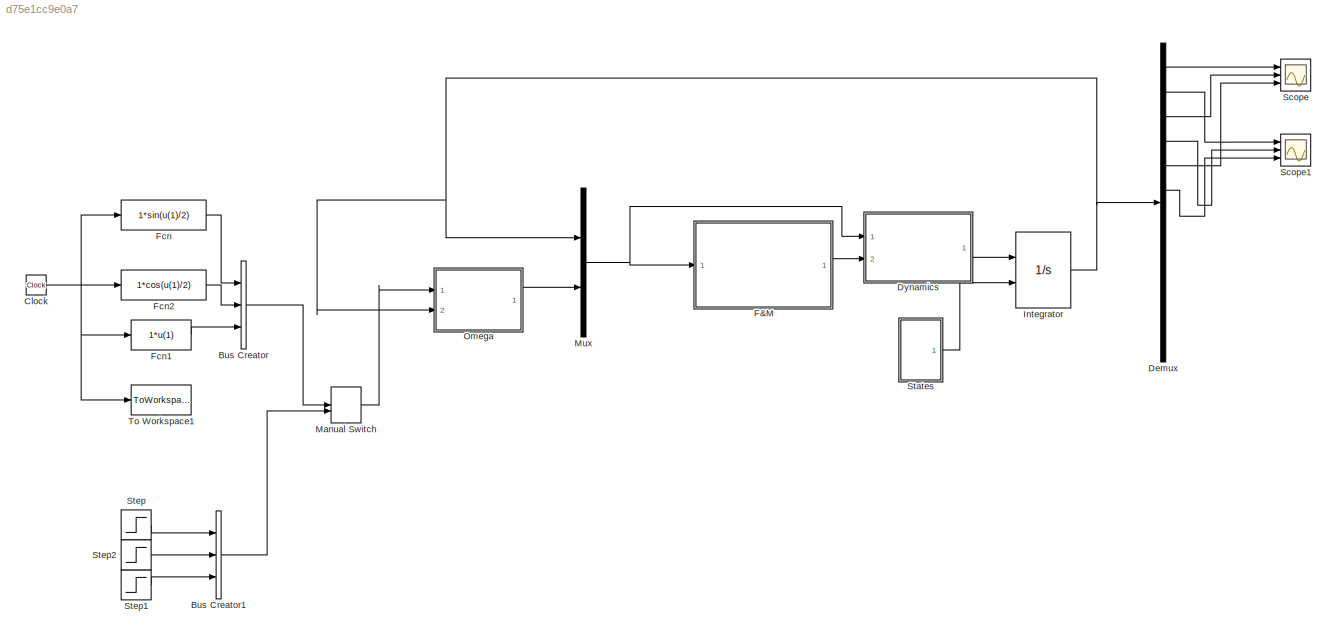
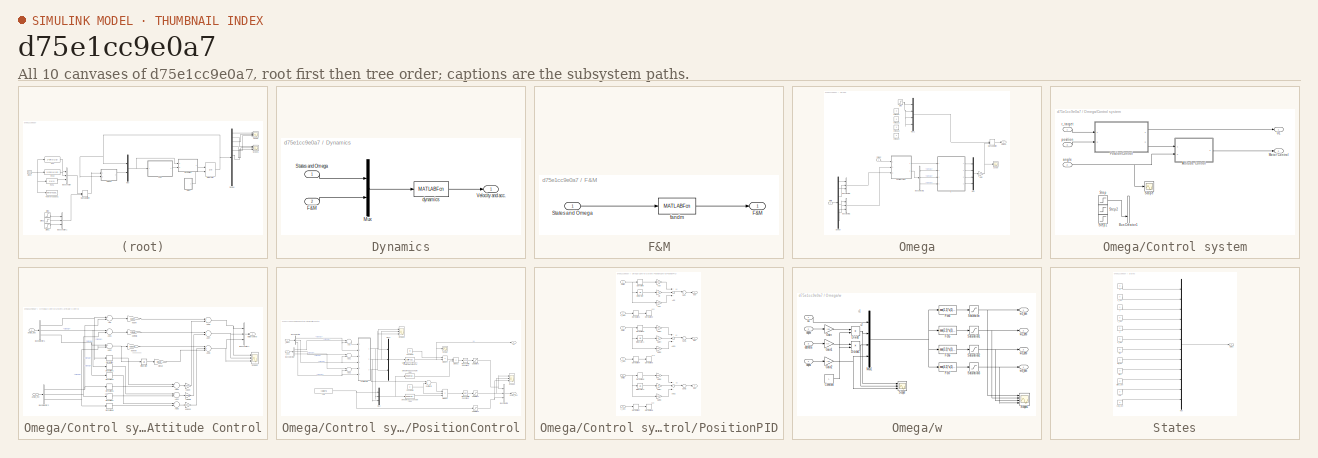
[diagram: thumbnail index - all 10 canvases of the model, root first then tree order]
MODEL slx_d75e1cc9e0a7
KIND model
CONFIG AbsTol = auto
CONFIG EnableMultiTasking = off
CONFIG FixedStep = 0.01
CONFIG InitFcn = glob
CONFIG MaxStep = auto
CONFIG MinStep = auto
CONFIG RelTol = 1e-3
CONFIG SampleTimeConstraint = Unconstrained
CONFIG Solver = FixedStepAuto
CONFIG SolverName = FixedStepAuto
CONFIG StartTime = 0.0
CONFIG StopTime = 10
BLOCK [BusCreator] Bus Creator
  DisplayOption = bar
  InheritFromInputs = on
  Inputs = 3
  Ports = [3, 1]
BLOCK [BusCreator] Bus Creator1
  DisplayOption = bar
  InheritFromInputs = on
  Inputs = 3
  Ports = [3, 1]
BLOCK [Clock] Clock
BLOCK [Demux] Demux
  DisplayOption = bar
  Outputs = 12
  Ports = [1, 12]
BLOCK [SubSystem] Dynamics
  Ports = [2, 1]
  RequestExecContextInheritance = off
  Variant = off
BLOCK [Inport] Dynamics/F&M
  IconDisplay = Port number
  Port = 2
BLOCK [Mux] Dynamics/Mux
  DisplayOption = bar
  Inputs = 2
  Ports = [2, 1]
BLOCK [Inport] Dynamics/States and Omega
  IconDisplay = Port number
BLOCK [Outport] Dynamics/Velocity and acc. 
  IconDisplay = Port number
BLOCK [MATLABFcn] Dynamics/dynamics
  MATLABFcn = dynamics
  OutputDimensions = 12
  Ports = [1, 1]
BLOCK [SubSystem] F&M
  Ports = [1, 1]
  RequestExecContextInheritance = off
  Variant = off
BLOCK [Outport] F&M/F&M
  IconDisplay = Port number
BLOCK [Inport] F&M/States and Omega
  IconDisplay = Port number
BLOCK [MATLABFcn] F&M/fandm
  MATLABFcn = motorFM
  OutputDimensions = 24
  Ports = [1, 1]
BLOCK [Fcn] Fcn
  Expr = 1*sin(u(1)/2)
BLOCK [Fcn] Fcn1
  Expr = 1*u(1)
BLOCK [Fcn] Fcn2
  Expr = 1*cos(u(1)/2)
BLOCK [Integrator] Integrator
  InitialConditionSource = external
  Ports = [2, 1]
BLOCK [ManualSwitch] Manual Switch
BLOCK [Mux] Mux
  DisplayOption = bar
  Inputs = 2
  Ports = [2, 1]
BLOCK [SubSystem] Omega
  Ports = [2, 1]
  RequestExecContextInheritance = off
  Variant = off
BLOCK [BusCreator] Omega/Bus Creator1
  DisplayOption = bar
  InheritFromInputs = on
  Inputs = 3
  Ports = [3, 1]
BLOCK [BusCreator] Omega/Bus Creator2
  DisplayOption = bar
  InheritFromInputs = on
  Inputs = 3
  Ports = [3, 1]
BLOCK [BusSelector] Omega/Bus Selector1
  OutputAsBus = off
  OutputSignals = signal1,signal2,signal3
  Ports = [1, 3]
BLOCK [SubSystem] Omega/Control system
  Ports = [3, 2]
  RequestExecContextInheritance = off
  Variant = off
BLOCK [SubSystem] Omega/Control system/Attitude Control
  Ports = [2, 1]
  RequestExecContextInheritance = off
  Variant = off
BLOCK [Sum] Omega/Control system/Attitude Control/Add
  InputSameDT = off
  Inputs = +-
  OutDataTypeStr = Inherit: Inherit via internal rule
  Ports = [2, 1]
  SaturateOnIntegerOverflow = off
BLOCK [Sum] Omega/Control system/Attitude Control/Add1
  InputSameDT = off
  Inputs = +-
  OutDataTypeStr = Inherit: Inherit via internal rule
  Ports = [2, 1]
  SaturateOnIntegerOverflow = off
BLOCK [Sum] Omega/Control system/Attitude Control/Add2
  InputSameDT = off
  Inputs = +-
  OutDataTypeStr = Inherit: Inherit via internal rule
  Ports = [2, 1]
  SaturateOnIntegerOverflow = off
BLOCK [Sum] Omega/Control system/Attitude Control/Add3
  InputSameDT = off
  Inputs = +-
  OutDataTypeStr = Inherit: Inherit via internal rule
  Ports = [2, 1]
  SaturateOnIntegerOverflow = off
BLOCK [Sum] Omega/Control system/Attitude Control/Add4
  InputSameDT = off
  Inputs = +-
  OutDataTypeStr = Inherit: Inherit via internal rule
  Ports = [2, 1]
  SaturateOnIntegerOverflow = off
BLOCK [Sum] Omega/Control system/Attitude Control/Add5
  InputSameDT = off
  Inputs = +-
  OutDataTypeStr = Inherit: Inherit via internal rule
  Ports = [2, 1]
  SaturateOnIntegerOverflow = off
BLOCK [Sum] Omega/Control system/Attitude Control/Add6
  InputSameDT = off
  OutDataTypeStr = Inherit: Inherit via internal rule
  Ports = [2, 1]
  SaturateOnIntegerOverflow = off
BLOCK [Sum] Omega/Control system/Attitude Control/Add7
  InputSameDT = off
  OutDataTypeStr = Inherit: Inherit via internal rule
  Ports = [2, 1]
  SaturateOnIntegerOverflow = off
BLOCK [Sum] Omega/Control system/Attitude Control/Add8
  InputSameDT = off
  Inputs = +++
  OutDataTypeStr = Inherit: Inherit via internal rule
  Ports = [3, 1]
  SaturateOnIntegerOverflow = off
BLOCK [BusCreator] Omega/Control system/Attitude Control/Bus Creator1
  DisplayOption = bar
  InheritFromInputs = on
  Inputs = 3
  Ports = [3, 1]
BLOCK [BusSelector] Omega/Control system/Attitude Control/Bus Selector1
  OutputAsBus = off
  OutputSignals = signal1,signal2,signal3
  Ports = [1, 3]
BLOCK [BusSelector] Omega/Control system/Attitude Control/Bus Selector2
  OutputAsBus = off
  OutputSignals = signal1,signal2,signal3
  Ports = [1, 3]
BLOCK [Derivative] Omega/Control system/Attitude Control/Derivative
  CoefficientInTFapproximation = 500
BLOCK [Derivative] Omega/Control system/Attitude Control/Derivative1
  CoefficientInTFapproximation = 500
BLOCK [Derivative] Omega/Control system/Attitude Control/Derivative2
  CoefficientInTFapproximation = 500
BLOCK [Derivative] Omega/Control system/Attitude Control/Derivative6
  CoefficientInTFapproximation = 500
BLOCK [Derivative] Omega/Control system/Attitude Control/Derivative7
  CoefficientInTFapproximation = 500
BLOCK [Derivative] Omega/Control system/Attitude Control/Derivative8
  CoefficientInTFapproximation = 500
BLOCK [Integrator] Omega/Control system/Attitude Control/Integrator
  Ports = [1, 1]
BLOCK [Scope] Omega/Control system/Attitude Control/Scope2
  NumInputPorts = 3
  Ports = [3]
  ScopeSpecificationString = Simulink.scopes.TimeScopeBlockCfg('CurrentConfiguration', extmgr.ConfigurationSet(extmgr.Configuration('Core','General UI',true),extmgr.Configuration('Core','Source UI',true),extmgr.Configuration('Sources','WiredSimulink',true,'DataLoggingVariableName','ScopeData3'),extmgr.Configuration('Visuals','Time Domain',true,'SerializedDisplays',{struct('MinYLimReal','-2343.79359','MaxYLimReal','2777.88882'...<+1397ch>
BLOCK [Inport] Omega/Control system/Attitude Control/angle_des
  IconDisplay = Port number
BLOCK [Inport] Omega/Control system/Attitude Control/angle_est
  IconDisplay = Port number
  Port = 2
BLOCK [Gain] Omega/Control system/Attitude Control/kdphi
  Gain = kdphi
  OutDataTypeStr = Inherit: Inherit via internal rule
  ParamDataTypeStr = Inherit: Inherit via internal rule
  SaturateOnIntegerOverflow = off
BLOCK [Gain] Omega/Control system/Attitude Control/kdpsai
  Gain = kdpsai
  OutDataTypeStr = Inherit: Inherit via internal rule
  ParamDataTypeStr = Inherit: Inherit via internal rule
  SaturateOnIntegerOverflow = off
BLOCK [Gain] Omega/Control system/Attitude Control/kdtheta
  Gain = kdtheta
  OutDataTypeStr = Inherit: Inherit via internal rule
  ParamDataTypeStr = Inherit: Inherit via internal rule
  SaturateOnIntegerOverflow = off
BLOCK [Gain] Omega/Control system/Attitude Control/kipsai
  Gain = kipsai
  OutDataTypeStr = Inherit: Inherit via internal rule
  ParamDataTypeStr = Inherit: Inherit via internal rule
  SaturateOnIntegerOverflow = off
BLOCK [Gain] Omega/Control system/Attitude Control/kpphi
  Gain = kpphi
  OutDataTypeStr = Inherit: Inherit via internal rule
  ParamDataTypeStr = Inherit: Inherit via internal rule
  SaturateOnIntegerOverflow = off
BLOCK [Gain] Omega/Control system/Attitude Control/kppsai
  Gain = kppsai
  OutDataTypeStr = Inherit: Inherit via internal rule
  ParamDataTypeStr = Inherit: Inherit via internal rule
  SaturateOnIntegerOverflow = off
BLOCK [Gain] Omega/Control system/Attitude Control/kptheta
  Gain = kptheta
  OutDataTypeStr = Inherit: Inherit via internal rule
  ParamDataTypeStr = Inherit: Inherit via internal rule
  SaturateOnIntegerOverflow = off
BLOCK [Outport] Omega/Control system/Attitude Control/motor control
  IconDisplay = Port number
BLOCK [BusCreator] Omega/Control system/Bus Creator1
  DisplayOption = bar
  InheritFromInputs = on
  Inputs = 3
  Ports = [3, 1]
BLOCK [Outport] Omega/Control system/Motor Control
  IconDisplay = Port number
  Port = 2
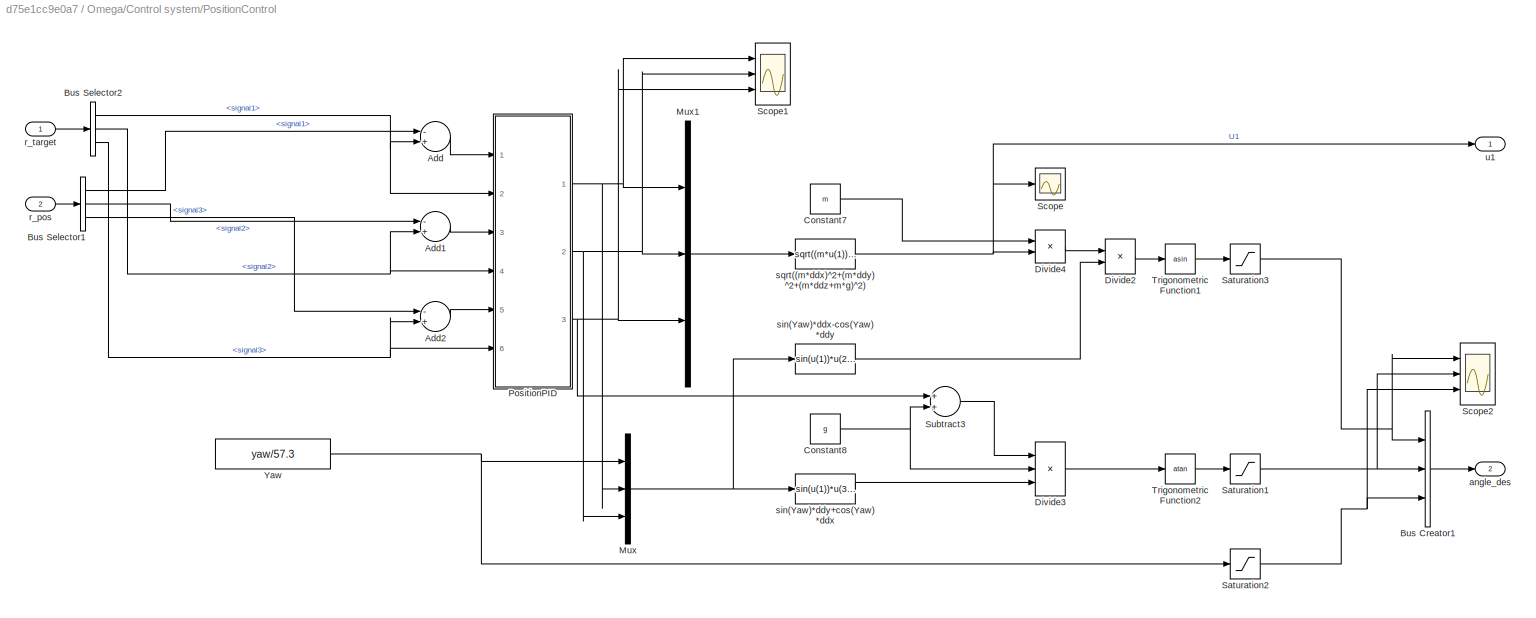
BLOCK [SubSystem] Omega/Control system/PositionControl
  Ports = [2, 2]
  RequestExecContextInheritance = off
  Variant = off
BLOCK [Sum] Omega/Control system/PositionControl/Add
  InputSameDT = off
  Inputs = -+
  OutDataTypeStr = Inherit: Inherit via internal rule
  Ports = [2, 1]
  SaturateOnIntegerOverflow = off
BLOCK [Sum] Omega/Control system/PositionControl/Add1
  InputSameDT = off
  Inputs = -+
  OutDataTypeStr = Inherit: Inherit via internal rule
  Ports = [2, 1]
  SaturateOnIntegerOverflow = off
BLOCK [Sum] Omega/Control system/PositionControl/Add2
  InputSameDT = off
  Inputs = -+
  OutDataTypeStr = Inherit: Inherit via internal rule
  Ports = [2, 1]
  SaturateOnIntegerOverflow = off
BLOCK [BusCreator] Omega/Control system/PositionControl/Bus Creator1
  DisplayOption = bar
  InheritFromInputs = on
  Inputs = 3
  Ports = [3, 1]
BLOCK [BusSelector] Omega/Control system/PositionControl/Bus Selector1
  OutputAsBus = off
  OutputSignals = signal1,signal2,signal3
  Ports = [1, 3]
BLOCK [BusSelector] Omega/Control system/PositionControl/Bus Selector2
  OutputAsBus = off
  OutputSignals = signal1,signal2,signal3
  Ports = [1, 3]
BLOCK [Constant] Omega/Control system/PositionControl/Constant7
  Value = m
BLOCK [Constant] Omega/Control system/PositionControl/Constant8
  Value = g
BLOCK [Product] Omega/Control system/PositionControl/Divide2
  InputSameDT = off
  Inputs = **
  OutDataTypeStr = Inherit: Inherit via internal rule
  Ports = [2, 1]
  RndMeth = Floor
  SaturateOnIntegerOverflow = off
BLOCK [Product] Omega/Control system/PositionControl/Divide3
  InputSameDT = off
  Inputs = /**
  OutDataTypeStr = Inherit: Inherit via internal rule
  Ports = [3, 1]
  RndMeth = Floor
  SaturateOnIntegerOverflow = off
BLOCK [Product] Omega/Control system/PositionControl/Divide4
  InputSameDT = off
  Inputs = */
  OutDataTypeStr = Inherit: Inherit via internal rule
  Ports = [2, 1]
  RndMeth = Floor
  SaturateOnIntegerOverflow = off
BLOCK [Mux] Omega/Control system/PositionControl/Mux
  DisplayOption = bar
  Inputs = 3
  Ports = [3, 1]
BLOCK [Mux] Omega/Control system/PositionControl/Mux1
  DisplayOption = bar
  Inputs = 3
  Ports = [3, 1]
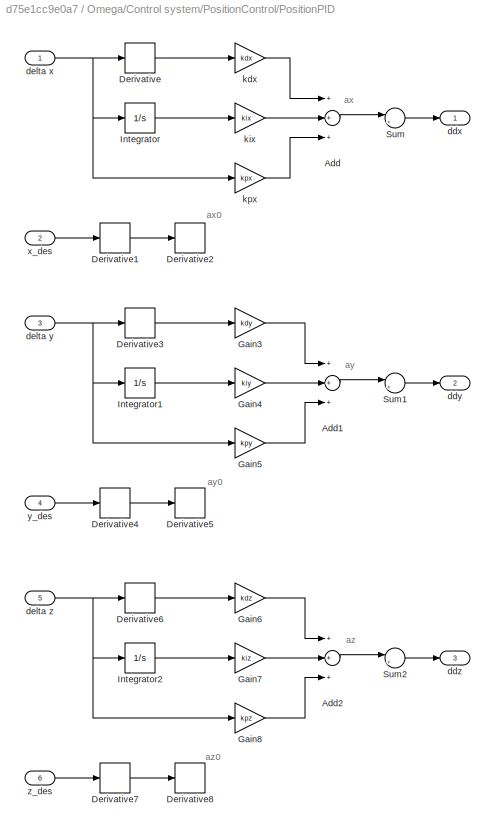
BLOCK [SubSystem] Omega/Control system/PositionControl/PositionPID
  Ports = [6, 3]
  RequestExecContextInheritance = off
  Variant = off
BLOCK [Sum] Omega/Control system/PositionControl/PositionPID/Add
  InputSameDT = off
  Inputs = +++
  OutDataTypeStr = Inherit: Inherit via internal rule
  Ports = [3, 1]
  SaturateOnIntegerOverflow = off
BLOCK [Sum] Omega/Control system/PositionControl/PositionPID/Add1
  InputSameDT = off
  Inputs = +++
  OutDataTypeStr = Inherit: Inherit via internal rule
  Ports = [3, 1]
  SaturateOnIntegerOverflow = off
BLOCK [Sum] Omega/Control system/PositionControl/PositionPID/Add2
  InputSameDT = off
  Inputs = +++
  OutDataTypeStr = Inherit: Inherit via internal rule
  Ports = [3, 1]
  SaturateOnIntegerOverflow = off
BLOCK [Derivative] Omega/Control system/PositionControl/PositionPID/Derivative
  CoefficientInTFapproximation = 500
BLOCK [Derivative] Omega/Control system/PositionControl/PositionPID/Derivative1
  CoefficientInTFapproximation = 500
BLOCK [Derivative] Omega/Control system/PositionControl/PositionPID/Derivative2
  CoefficientInTFapproximation = 500
BLOCK [Derivative] Omega/Control system/PositionControl/PositionPID/Derivative3
  CoefficientInTFapproximation = 500
BLOCK [Derivative] Omega/Control system/PositionControl/PositionPID/Derivative4
  CoefficientInTFapproximation = 500
BLOCK [Derivative] Omega/Control system/PositionControl/PositionPID/Derivative5
  CoefficientInTFapproximation = 500
BLOCK [Derivative] Omega/Control system/PositionControl/PositionPID/Derivative6
BLOCK [Derivative] Omega/Control system/PositionControl/PositionPID/Derivative7
  CoefficientInTFapproximation = 500
BLOCK [Derivative] Omega/Control system/PositionControl/PositionPID/Derivative8
  CoefficientInTFapproximation = 500
BLOCK [Gain] Omega/Control system/PositionControl/PositionPID/Gain3
  Gain = kdy
  OutDataTypeStr = Inherit: Inherit via internal rule
  ParamDataTypeStr = Inherit: Inherit via internal rule
  SaturateOnIntegerOverflow = off
BLOCK [Gain] Omega/Control system/PositionControl/PositionPID/Gain4
  Gain = kiy
  OutDataTypeStr = Inherit: Inherit via internal rule
  ParamDataTypeStr = Inherit: Inherit via internal rule
  SaturateOnIntegerOverflow = off
BLOCK [Gain] Omega/Control system/PositionControl/PositionPID/Gain5
  Gain = kpy
  OutDataTypeStr = Inherit: Inherit via internal rule
  ParamDataTypeStr = Inherit: Inherit via internal rule
  SaturateOnIntegerOverflow = off
BLOCK [Gain] Omega/Control system/PositionControl/PositionPID/Gain6
  Gain = kdz
  OutDataTypeStr = Inherit: Inherit via internal rule
  ParamDataTypeStr = Inherit: Inherit via internal rule
  SaturateOnIntegerOverflow = off
BLOCK [Gain] Omega/Control system/PositionControl/PositionPID/Gain7
  Gain = kiz
  OutDataTypeStr = Inherit: Inherit via internal rule
  ParamDataTypeStr = Inherit: Inherit via internal rule
  SaturateOnIntegerOverflow = off
BLOCK [Gain] Omega/Control system/PositionControl/PositionPID/Gain8
  Gain = kpz
  OutDataTypeStr = Inherit: Inherit via internal rule
  ParamDataTypeStr = Inherit: Inherit via internal rule
  SaturateOnIntegerOverflow = off
BLOCK [Integrator] Omega/Control system/PositionControl/PositionPID/Integrator
  Ports = [1, 1]
BLOCK [Integrator] Omega/Control system/PositionControl/PositionPID/Integrator1
  Ports = [1, 1]
BLOCK [Integrator] Omega/Control system/PositionControl/PositionPID/Integrator2
  Ports = [1, 1]
BLOCK [Sum] Omega/Control system/PositionControl/PositionPID/Sum
  IconShape = round
  InputSameDT = off
  Inputs = |++
  OutDataTypeStr = Inherit: Inherit via internal rule
  Ports = [2, 1]
  SaturateOnIntegerOverflow = off
BLOCK [Sum] Omega/Control system/PositionControl/PositionPID/Sum1
  IconShape = round
  InputSameDT = off
  Inputs = |++
  OutDataTypeStr = Inherit: Inherit via internal rule
  Ports = [2, 1]
  SaturateOnIntegerOverflow = off
BLOCK [Sum] Omega/Control system/PositionControl/PositionPID/Sum2
  IconShape = round
  InputSameDT = off
  Inputs = |++
  OutDataTypeStr = Inherit: Inherit via internal rule
  Ports = [2, 1]
  SaturateOnIntegerOverflow = off
BLOCK [Outport] Omega/Control system/PositionControl/PositionPID/ddx
  IconDisplay = Port number
BLOCK [Outport] Omega/Control system/PositionControl/PositionPID/ddy
  IconDisplay = Port number
  Port = 2
BLOCK [Outport] Omega/Control system/PositionControl/PositionPID/ddz
  IconDisplay = Port number
  Port = 3
BLOCK [Inport] Omega/Control system/PositionControl/PositionPID/delta x
  IconDisplay = Port number
BLOCK [Inport] Omega/Control system/PositionControl/PositionPID/delta y
  IconDisplay = Port number
  Port = 3
BLOCK [Inport] Omega/Control system/PositionControl/PositionPID/delta z
  IconDisplay = Port number
  Port = 5
BLOCK [Gain] Omega/Control system/PositionControl/PositionPID/kdx
  Gain = kdx
  OutDataTypeStr = Inherit: Inherit via internal rule
  ParamDataTypeStr = Inherit: Inherit via internal rule
  SaturateOnIntegerOverflow = off
BLOCK [Gain] Omega/Control system/PositionControl/PositionPID/kix
  Gain = kix
  OutDataTypeStr = Inherit: Inherit via internal rule
  ParamDataTypeStr = Inherit: Inherit via internal rule
  SaturateOnIntegerOverflow = off
BLOCK [Gain] Omega/Control system/PositionControl/PositionPID/kpx
  Gain = kpx
  OutDataTypeStr = Inherit: Inherit via internal rule
  ParamDataTypeStr = Inherit: Inherit via internal rule
  SaturateOnIntegerOverflow = off
BLOCK [Inport] Omega/Control system/PositionControl/PositionPID/x_des
  IconDisplay = Port number
  Port = 2
BLOCK [Inport] Omega/Control system/PositionControl/PositionPID/y_des
  IconDisplay = Port number
  Port = 4
BLOCK [Inport] Omega/Control system/PositionControl/PositionPID/z_des
  IconDisplay = Port number
  Port = 6
BLOCK [Saturate] Omega/Control system/PositionControl/Saturation1
  InputPortMap = u0
  LowerLimit = -90/57.3
  Ports = [1, 1]
  UpperLimit = 90/57.3
BLOCK [Saturate] Omega/Control system/PositionControl/Saturation2
  InputPortMap = u0
  LowerLimit = -90/57.3
  Ports = [1, 1]
  UpperLimit = 90/57.3
BLOCK [Saturate] Omega/Control system/PositionControl/Saturation3
  InputPortMap = u0
  LowerLimit = -90/57.3
  Ports = [1, 1]
  UpperLimit = 90/57.3
BLOCK [Scope] Omega/Control system/PositionControl/Scope
  NumInputPorts = 1
  Ports = [1]
  ScopeSpecificationString = Simulink.scopes.TimeScopeBlockCfg('CurrentConfiguration', extmgr.ConfigurationSet(extmgr.Configuration('Core','General UI',true,'FigureColor',[0.941176470588235 0.941176470588235 0.941176470588235]),extmgr.Configuration('Core','Source UI',true),extmgr.Configuration('Sources','WiredSimulink',true,'DataLoggingVariableName','ScopeData5'),extmgr.Configuration('Visuals','Time Domain',true,'SerializedDi...<+1560ch>
BLOCK [Scope] Omega/Control system/PositionControl/Scope1
  NumInputPorts = 3
  Ports = [3]
  ScopeSpecificationString = Simulink.scopes.TimeScopeBlockCfg('CurrentConfiguration', extmgr.ConfigurationSet(extmgr.Configuration('Core','General UI',true),extmgr.Configuration('Core','Source UI',true),extmgr.Configuration('Sources','WiredSimulink',true,'DataLoggingVariableName','ScopeData1'),extmgr.Configuration('Visuals','Time Domain',true,'SerializedDisplays',{struct('MinYLimReal','-10.6688','MaxYLimReal','67.48411','YLa...<+1406ch>
BLOCK [Scope] Omega/Control system/PositionControl/Scope2
  NumInputPorts = 3
  Ports = [3]
  ScopeSpecificationString = Simulink.scopes.TimeScopeBlockCfg('CurrentConfiguration', extmgr.ConfigurationSet(extmgr.Configuration('Core','General UI',true),extmgr.Configuration('Core','Source UI',true),extmgr.Configuration('Sources','WiredSimulink',true,'DataLoggingVariableName','ScopeData2'),extmgr.Configuration('Visuals','Time Domain',true,'SerializedDisplays',{struct('MinYLimReal','-0.56618','MaxYLimReal','0.38029','YLab...<+1398ch>
BLOCK [Sum] Omega/Control system/PositionControl/Subtract3
  InputSameDT = off
  OutDataTypeStr = Inherit: Inherit via internal rule
  Ports = [2, 1]
  SaturateOnIntegerOverflow = off
BLOCK [Trigonometry] Omega/Control system/PositionControl/Trigonometric Function1
  Operator = asin
  Ports = [1, 1]
BLOCK [Trigonometry] Omega/Control system/PositionControl/Trigonometric Function2
  Operator = atan
  Ports = [1, 1]
BLOCK [Constant] Omega/Control system/PositionControl/Yaw
  Value = yaw/57.3
BLOCK [Outport] Omega/Control system/PositionControl/angle_des
  IconDisplay = Port number
  Port = 2
BLOCK [Inport] Omega/Control system/PositionControl/r_pos
  IconDisplay = Port number
  Port = 2
BLOCK [Inport] Omega/Control system/PositionControl/r_target
  IconDisplay = Port number
BLOCK [Fcn] Omega/Control system/PositionControl/sin(Yaw)*ddx-cos(Yaw)*ddy
  Expr = sin(u(1))*u(2)-cos(u(1))*u(3)
BLOCK [Fcn] Omega/Control system/PositionControl/sin(Yaw)*ddy+cos(Yaw)*ddx
  Expr = sin(u(1))*u(3)+cos(u(1))*u(2)
BLOCK [Fcn] Omega/Control system/PositionControl/sqrt((m*ddx)^2+(m*ddy)^2+(m*ddz+m*g)^2)
  Expr = sqrt((m*u(1))^2+(m*u(2))^2+(m*u(3)+m*g)^2)
BLOCK [Outport] Omega/Control system/PositionControl/u1
  IconDisplay = Port number
BLOCK [Scope] Omega/Control system/Scope
  NumInputPorts = 1
  Ports = [1]
  ScopeSpecificationString = Simulink.scopes.TimeScopeBlockCfg('CurrentConfiguration', extmgr.ConfigurationSet(extmgr.Configuration('Core','General UI',true),extmgr.Configuration('Core','Source UI',true),extmgr.Configuration('Sources','WiredSimulink',true,'DataLoggingVariableName','ScopeData4'),extmgr.Configuration('Visuals','Time Domain',true,'SerializedDisplays',{struct('MinYLimReal','-2.07466','MaxYLimReal','0.70578','YLab...<+1438ch>
BLOCK [Step] Omega/Control system/Step
  After = pi/6
  SampleTime = 0
  Time = 0
BLOCK [Step] Omega/Control system/Step1
  After = zf
  SampleTime = 0
  Time = 0
BLOCK [Step] Omega/Control system/Step2
  After = yf
  SampleTime = 0
  Time = 0
BLOCK [Outport] Omega/Control system/U1
  IconDisplay = Port number
BLOCK [Inport] Omega/Control system/angle
  IconDisplay = Port number
  Port = 2
BLOCK [Inport] Omega/Control system/position
  IconDisplay = Port number
  Port = 3
BLOCK [Inport] Omega/Control system/r_target
  IconDisplay = Port number
BLOCK [Demux] Omega/Demux
  DisplayOption = bar
  Outputs = 12
  Ports = [1, 12]
BLOCK [Gain] Omega/Gain
  Gain = 1e-3
  OutDataTypeStr = Inherit: Inherit via internal rule
  ParamDataTypeStr = Inherit: Inherit via internal rule
  SaturateOnIntegerOverflow = off
BLOCK [ManualSwitch] Omega/Manual Switch
  CurrentSetting = 0
BLOCK [Mux] Omega/Mux
  DisplayOption = bar
  Ports = [4, 1]
BLOCK [Mux] Omega/Mux1
  DisplayOption = bar
  Ports = [4, 1]
BLOCK [Outport] Omega/Omega 
  IconDisplay = Port number
BLOCK [Scope] Omega/Scope
  NumInputPorts = 1
  Ports = [1]
  ScopeSpecificationString = Simulink.scopes.TimeScopeBlockCfg('CurrentConfiguration', extmgr.ConfigurationSet(extmgr.Configuration('Core','General UI',true),extmgr.Configuration('Core','Source UI',true),extmgr.Configuration('Sources','WiredSimulink',true,'DataLoggingVariableName','ScopeData5'),extmgr.Configuration('Visuals','Time Domain',true,'SerializedDisplays',{struct('MinYLimReal','-111.03305','MaxYLimReal','999.29745','...<+1433ch>
BLOCK [Step] Omega/Step
  SampleTime = 0
  Time = 0
BLOCK [Constant] Omega/omega1
  Value = 0
BLOCK [Constant] Omega/omega2
  Value = 0
BLOCK [Constant] Omega/omega3
  Value = 0
BLOCK [Constant] Omega/omega4
  Value = 0
BLOCK [Inport] Omega/r_target
  IconDisplay = Port number
BLOCK [Inport] Omega/state
  IconDisplay = Port number
  Port = 2
BLOCK [SubSystem] Omega/w
  Ports = [4, 4]
  RequestExecContextInheritance = off
  Variant = off
BLOCK [Constant] Omega/w/Constant
  Value = L
BLOCK [Product] Omega/w/Divide
  InputSameDT = off
  Inputs = */
  OutDataTypeStr = Inherit: Inherit via internal rule
  Ports = [2, 1]
  RndMeth = Floor
  SaturateOnIntegerOverflow = off
BLOCK [Product] Omega/w/Divide1
  InputSameDT = off
  Inputs = */
  OutDataTypeStr = Inherit: Inherit via internal rule
  Ports = [2, 1]
  RndMeth = Floor
  SaturateOnIntegerOverflow = off
BLOCK [Fcn] Omega/w/Fcn4
  Expr = aaa(1,1)*u(1)+aaa(1,2)*u(2)+aaa(1,3)*u(3)+aaa(1,4)*u(4)
BLOCK [Fcn] Omega/w/Fcn5
  Expr = aaa(2,1)*u(1)+aaa(2,2)*u(2)+aaa(2,3)*u(3)+aaa(2,4)*u(4)
BLOCK [Fcn] Omega/w/Fcn6
  Expr = aaa(3,1)*u(1)+aaa(3,2)*u(2)+aaa(3,3)*u(3)+aaa(3,4)*u(4)
BLOCK [Fcn] Omega/w/Fcn7
  Expr = aaa(4,1)*u(1)+aaa(4,2)*u(2)+aaa(4,3)*u(3)+aaa(4,4)*u(4)
BLOCK [Gain] Omega/w/Gain
  Gain = Ixx
  OutDataTypeStr = Inherit: Inherit via internal rule
  ParamDataTypeStr = Inherit: Inherit via internal rule
  SaturateOnIntegerOverflow = off
BLOCK [Gain] Omega/w/Gain1
  Gain = Iyy
  OutDataTypeStr = Inherit: Inherit via internal rule
  ParamDataTypeStr = Inherit: Inherit via internal rule
  SaturateOnIntegerOverflow = off
BLOCK [Gain] Omega/w/Gain2
  Gain = Izz
  OutDataTypeStr = Inherit: Inherit via internal rule
  ParamDataTypeStr = Inherit: Inherit via internal rule
  SaturateOnIntegerOverflow = off
BLOCK [Mux] Omega/w/Mux1
  DisplayOption = bar
  Ports = [4, 1]
BLOCK [Saturate] Omega/w/Saturation
  InputPortMap = u0
  LowerLimit = 0
  Ports = [1, 1]
  UpperLimit = (9000*2*pi/60)^2
BLOCK [Saturate] Omega/w/Saturation1
  InputPortMap = u0
  LowerLimit = 0
  Ports = [1, 1]
  UpperLimit = (9000*2*pi/60)^2
BLOCK [Saturate] Omega/w/Saturation2
  InputPortMap = u0
  LowerLimit = 0
  Ports = [1, 1]
  UpperLimit = (9000*2*pi/60)^2
BLOCK [Saturate] Omega/w/Saturation3
  InputPortMap = u0
  LowerLimit = 0
  Ports = [1, 1]
  UpperLimit = (9000*2*pi/60)^2
BLOCK [Scope] Omega/w/Scope
  NumInputPorts = 3
  Ports = [3]
  ScopeSpecificationString = Simulink.scopes.TimeScopeBlockCfg('CurrentConfiguration', extmgr.ConfigurationSet(extmgr.Configuration('Core','General UI',true),extmgr.Configuration('Core','Source UI',true),extmgr.Configuration('Sources','WiredSimulink',true,'DataLoggingVariableName','ScopeData6'),extmgr.Configuration('Visuals','Time Domain',true,'SerializedDisplays',{struct('MinYLimReal','-62.91873','MaxYLimReal','74.57195','YL...<+1387ch>
BLOCK [Scope] Omega/w/Scope1
  NumInputPorts = 4
  Ports = [4]
  ScopeSpecificationString = Simulink.scopes.TimeScopeBlockCfg('CurrentConfiguration', extmgr.ConfigurationSet(extmgr.Configuration('Core','General UI',true),extmgr.Configuration('Core','Source UI',true),extmgr.Configuration('Sources','WiredSimulink',true,'DataLoggingVariableName','ScopeData3'),extmgr.Configuration('Visuals','Time Domain',true,'SerializedDisplays',{struct('MinYLimReal','85086.36854','MaxYLimReal','977506.3991...<+1515ch>
BLOCK [Inport] Omega/w/ddphi
  IconDisplay = Port number
  Port = 2
BLOCK [Inport] Omega/w/ddpsi
  IconDisplay = Port number
  Port = 4
BLOCK [Inport] Omega/w/ddtheta
  IconDisplay = Port number
  Port = 3
BLOCK [Inport] Omega/w/u1
  IconDisplay = Port number
BLOCK [Outport] Omega/w/w1_des
  IconDisplay = Port number
BLOCK [Outport] Omega/w/w2_des
  IconDisplay = Port number
  Port = 2
BLOCK [Outport] Omega/w/w3_des
  IconDisplay = Port number
  Port = 3
BLOCK [Outport] Omega/w/w4_des
  IconDisplay = Port number
  Port = 4
BLOCK [Scope] Scope
  NumInputPorts = 3
  Ports = [3]
  ScopeSpecificationString = Simulink.scopes.TimeScopeBlockCfg('CurrentConfiguration', extmgr.ConfigurationSet(extmgr.Configuration('Core','General UI',true),extmgr.Configuration('Core','Source UI',true),extmgr.Configuration('Sources','WiredSimulink',true,'DataLoggingVariableName','ScopeData7'),extmgr.Configuration('Visuals','Time Domain',true,'SerializedDisplays',{struct('MinYLimReal','-2.7328','MaxYLimReal','10.84685','YLab...<+1459ch>
BLOCK [Scope] Scope1
  NumInputPorts = 3
  Ports = [3]
  ScopeSpecificationString = Simulink.scopes.TimeScopeBlockCfg('CurrentConfiguration', extmgr.ConfigurationSet(extmgr.Configuration('Core','General UI',true),extmgr.Configuration('Core','Source UI',true),extmgr.Configuration('Sources','WiredSimulink',true,'DataLoggingVariableName','ScopeData8'),extmgr.Configuration('Visuals','Time Domain',true),extmgr.Configuration('Tools','Plot Navigation',true),extmgr.Configuration('Tools',...<+40ch>
BLOCK [SubSystem] States
  Ports = [0, 1]
  RequestExecContextInheritance = off
  Variant = off
BLOCK [Mux] States/Mux
  DisplayOption = bar
  Inputs = 12
  Ports = [12, 1]
BLOCK [Outport] States/States 
  IconDisplay = Port number
BLOCK [Constant] States/pitch
  Value = 0
BLOCK [Constant] States/pitch_dot
  Value = 0
BLOCK [Constant] States/roll
  Value = 0
BLOCK [Constant] States/roll_dot
  Value = 0
BLOCK [Constant] States/x
  Value = 0
BLOCK [Constant] States/x_dot
  Value = 0
BLOCK [Constant] States/y
  Value = 0
BLOCK [Constant] States/y_dot
  Value = 0
BLOCK [Constant] States/yaw
  Value = 0
BLOCK [Constant] States/yaw_dot
  Value = 0
BLOCK [Constant] States/z
  Value = 0
BLOCK [Constant] States/z_dot
  Value = 0
BLOCK [Step] Step
  After = xf
  SampleTime = 0
  Time = 0
BLOCK [Step] Step1
  After = zf
  SampleTime = 0
  Time = 0
BLOCK [Step] Step2
  After = yf
  SampleTime = 0
  Time = 0
BLOCK [ToWorkspace] To Workspace1
  FixptAsFi = on
  MaxDataPoints = inf
  Ports = [1]
  SampleTime = -1
  Save2DSignal = 2-D array (concatenate along first dimension)
  VariableName = t
ANNOTATION Omega/Control system/Attitude Control: 500
ANNOTATION Omega/Control system/Attitude Control: 临时加的，不太好用
ANNOTATION Omega/Control system/PositionControl/PositionPID: ax
ANNOTATION Omega/Control system/PositionControl/PositionPID: ax0
ANNOTATION Omega/Control system/PositionControl/PositionPID: ay
ANNOTATION Omega/Control system/PositionControl/PositionPID: ay0
ANNOTATION Omega/Control system/PositionControl/PositionPID: az
ANNOTATION Omega/Control system/PositionControl/PositionPID: az0
ANNOTATION Omega/w: u1
ANNOTATION Omega/w: u2
LINE Bus Creator1:1 -> Manual Switch:2
LINE Bus Creator:1 -> Manual Switch:1
NET Clock:1 -> Fcn1:1, Fcn2:1, Fcn:1, To Workspace1:1
LINE Demux:1 -> Scope:1
LINE Demux:2 -> Scope1:1
LINE Demux:3 -> Scope:2
LINE Demux:4 -> Scope1:2
LINE Demux:5 -> Scope:3
LINE Demux:6 -> Scope1:3
LINE Dynamics/F&M:1 -> Dynamics/Mux:2
LINE Dynamics/Mux:1 -> Dynamics/dynamics:1
LINE Dynamics/States and Omega:1 -> Dynamics/Mux:1
LINE Dynamics/dynamics:1 -> Dynamics/Velocity and acc. :1
LINE Dynamics:1 -> Integrator:1
LINE F&M/States and Omega:1 -> F&M/fandm:1
LINE F&M/fandm:1 -> F&M/F&M:1
LINE F&M:1 -> Dynamics:2
LINE Fcn1:1 -> Bus Creator:3
LINE Fcn2:1 -> Bus Creator:2
LINE Fcn:1 -> Bus Creator:1
NET Integrator:1 -> Demux:1, Mux:1, Omega:2
LINE Manual Switch:1 -> Omega:1
NET Mux:1 -> Dynamics:1, F&M:1
LINE Omega/Bus Creator1:1 -> Omega/Control system:2
LINE Omega/Bus Creator2:1 -> Omega/Control system:3
LINE Omega/Bus Selector1:1 -> Omega/w:2
LINE Omega/Bus Selector1:2 -> Omega/w:3
LINE Omega/Bus Selector1:3 -> Omega/w:4
LINE Omega/Control system/Attitude Control/Add1:1 -> Omega/Control system/Attitude Control/kptheta:1
NET Omega/Control system/Attitude Control/Add2:1 -> Omega/Control system/Attitude Control/Integrator:1, Omega/Control system/Attitude Control/kppsai:1
LINE Omega/Control system/Attitude Control/Add3:1 -> Omega/Control system/Attitude Control/kdphi:1
LINE Omega/Control system/Attitude Control/Add4:1 -> Omega/Control system/Attitude Control/kdtheta:1
LINE Omega/Control system/Attitude Control/Add5:1 -> Omega/Control system/Attitude Control/kdpsai:1
NET Omega/Control system/Attitude Control/Add6:1 -> Omega/Control system/Attitude Control/Bus Creator1:1, Omega/Control system/Attitude Control/Scope2:1
NET Omega/Control system/Attitude Control/Add7:1 -> Omega/Control system/Attitude Control/Bus Creator1:2, Omega/Control system/Attitude Control/Scope2:2
NET Omega/Control system/Attitude Control/Add8:1 -> Omega/Control system/Attitude Control/Bus Creator1:3, Omega/Control system/Attitude Control/Scope2:3
LINE Omega/Control system/Attitude Control/Add:1 -> Omega/Control system/Attitude Control/kpphi:1
LINE Omega/Control system/Attitude Control/Bus Creator1:1 -> Omega/Control system/Attitude Control/motor control:1
NET Omega/Control system/Attitude Control/Bus Selector1:1 -> Omega/Control system/Attitude Control/Add:1, Omega/Control system/Attitude Control/Derivative:1
NET Omega/Control system/Attitude Control/Bus Selector1:2 -> Omega/Control system/Attitude Control/Add1:1, Omega/Control system/Attitude Control/Derivative1:1
NET Omega/Control system/Attitude Control/Bus Selector1:3 -> Omega/Control system/Attitude Control/Add2:1, Omega/Control system/Attitude Control/Derivative2:1
NET Omega/Control system/Attitude Control/Bus Selector2:1 -> Omega/Control system/Attitude Control/Add:2, Omega/Control system/Attitude Control/Derivative6:1
NET Omega/Control system/Attitude Control/Bus Selector2:2 -> Omega/Control system/Attitude Control/Add1:2, Omega/Control system/Attitude Control/Derivative7:1
NET Omega/Control system/Attitude Control/Bus Selector2:3 -> Omega/Control system/Attitude Control/Add2:2, Omega/Control system/Attitude Control/Derivative8:1
LINE Omega/Control system/Attitude Control/Derivative1:1 -> Omega/Control system/Attitude Control/Add4:1
LINE Omega/Control system/Attitude Control/Derivative2:1 -> Omega/Control system/Attitude Control/Add5:1
LINE Omega/Control system/Attitude Control/Derivative6:1 -> Omega/Control system/Attitude Control/Add3:2
LINE Omega/Control system/Attitude Control/Derivative7:1 -> Omega/Control system/Attitude Control/Add4:2
LINE Omega/Control system/Attitude Control/Derivative8:1 -> Omega/Control system/Attitude Control/Add5:2
LINE Omega/Control system/Attitude Control/Derivative:1 -> Omega/Control system/Attitude Control/Add3:1
LINE Omega/Control system/Attitude Control/Integrator:1 -> Omega/Control system/Attitude Control/kipsai:1
LINE Omega/Control system/Attitude Control/angle_des:1 -> Omega/Control system/Attitude Control/Bus Selector1:1
LINE Omega/Control system/Attitude Control/angle_est:1 -> Omega/Control system/Attitude Control/Bus Selector2:1
LINE Omega/Control system/Attitude Control/kdphi:1 -> Omega/Control system/Attitude Control/Add6:2
LINE Omega/Control system/Attitude Control/kdpsai:1 -> Omega/Control system/Attitude Control/Add8:2
LINE Omega/Control system/Attitude Control/kdtheta:1 -> Omega/Control system/Attitude Control/Add7:2
LINE Omega/Control system/Attitude Control/kipsai:1 -> Omega/Control system/Attitude Control/Add8:3
LINE Omega/Control system/Attitude Control/kpphi:1 -> Omega/Control system/Attitude Control/Add6:1
LINE Omega/Control system/Attitude Control/kppsai:1 -> Omega/Control system/Attitude Control/Add8:1
LINE Omega/Control system/Attitude Control/kptheta:1 -> Omega/Control system/Attitude Control/Add7:1
LINE Omega/Control system/Attitude Control:1 -> Omega/Control system/Motor Control:1
LINE Omega/Control system/PositionControl/Add1:1 -> Omega/Control system/PositionControl/PositionPID:3
LINE Omega/Control system/PositionControl/Add2:1 -> Omega/Control system/PositionControl/PositionPID:5
LINE Omega/Control system/PositionControl/Add:1 -> Omega/Control system/PositionControl/PositionPID:1
LINE Omega/Control system/PositionControl/Bus Creator1:1 -> Omega/Control system/PositionControl/angle_des:1
LINE Omega/Control system/PositionControl/Bus Selector1:1 -> Omega/Control system/PositionControl/Add:1
LINE Omega/Control system/PositionControl/Bus Selector1:2 -> Omega/Control system/PositionControl/Add1:1
LINE Omega/Control system/PositionControl/Bus Selector1:3 -> Omega/Control system/PositionControl/Add2:1
NET Omega/Control system/PositionControl/Bus Selector2:1 -> Omega/Control system/PositionControl/Add:2, Omega/Control system/PositionControl/PositionPID:2
NET Omega/Control system/PositionControl/Bus Selector2:2 -> Omega/Control system/PositionControl/Add1:2, Omega/Control system/PositionControl/PositionPID:4
NET Omega/Control system/PositionControl/Bus Selector2:3 -> Omega/Control system/PositionControl/Add2:2, Omega/Control system/PositionControl/PositionPID:6
LINE Omega/Control system/PositionControl/Constant7:1 -> Omega/Control system/PositionControl/Divide4:1
NET Omega/Control system/PositionControl/Constant8:1 -> Omega/Control system/PositionControl/Divide3:2, Omega/Control system/PositionControl/Subtract3:2
LINE Omega/Control system/PositionControl/Divide2:1 -> Omega/Control system/PositionControl/Trigonometric Function1:1
LINE Omega/Control system/PositionControl/Divide3:1 -> Omega/Control system/PositionControl/Trigonometric Function2:1
LINE Omega/Control system/PositionControl/Divide4:1 -> Omega/Control system/PositionControl/Divide2:1
LINE Omega/Control system/PositionControl/Mux1:1 -> Omega/Control system/PositionControl/sqrt((m*ddx)^2+(m*ddy)^2+(m*ddz+m*g)^2):1
NET Omega/Control system/PositionControl/Mux:1 -> Omega/Control system/PositionControl/sin(Yaw)*ddx-cos(Yaw)*ddy:1, Omega/Control system/PositionControl/sin(Yaw)*ddy+cos(Yaw)*ddx:1
LINE Omega/Control system/PositionControl/PositionPID/Add1:1 -> Omega/Control system/PositionControl/PositionPID/Sum1:1
LINE Omega/Control system/PositionControl/PositionPID/Add2:1 -> Omega/Control system/PositionControl/PositionPID/Sum2:1
LINE Omega/Control system/PositionControl/PositionPID/Add:1 -> Omega/Control system/PositionControl/PositionPID/Sum:1
LINE Omega/Control system/PositionControl/PositionPID/Derivative1:1 -> Omega/Control system/PositionControl/PositionPID/Derivative2:1
LINE Omega/Control system/PositionControl/PositionPID/Derivative3:1 -> Omega/Control system/PositionControl/PositionPID/Gain3:1
LINE Omega/Control system/PositionControl/PositionPID/Derivative4:1 -> Omega/Control system/PositionControl/PositionPID/Derivative5:1
LINE Omega/Control system/PositionControl/PositionPID/Derivative6:1 -> Omega/Control system/PositionControl/PositionPID/Gain6:1
LINE Omega/Control system/PositionControl/PositionPID/Derivative7:1 -> Omega/Control system/PositionControl/PositionPID/Derivative8:1
LINE Omega/Control system/PositionControl/PositionPID/Derivative:1 -> Omega/Control system/PositionControl/PositionPID/kdx:1
LINE Omega/Control system/PositionControl/PositionPID/Gain3:1 -> Omega/Control system/PositionControl/PositionPID/Add1:1
LINE Omega/Control system/PositionControl/PositionPID/Gain4:1 -> Omega/Control system/PositionControl/PositionPID/Add1:2
LINE Omega/Control system/PositionControl/PositionPID/Gain5:1 -> Omega/Control system/PositionControl/PositionPID/Add1:3
LINE Omega/Control system/PositionControl/PositionPID/Gain6:1 -> Omega/Control system/PositionControl/PositionPID/Add2:1
LINE Omega/Control system/PositionControl/PositionPID/Gain7:1 -> Omega/Control system/PositionControl/PositionPID/Add2:2
LINE Omega/Control system/PositionControl/PositionPID/Gain8:1 -> Omega/Control system/PositionControl/PositionPID/Add2:3
LINE Omega/Control system/PositionControl/PositionPID/Integrator1:1 -> Omega/Control system/PositionControl/PositionPID/Gain4:1
LINE Omega/Control system/PositionControl/PositionPID/Integrator2:1 -> Omega/Control system/PositionControl/PositionPID/Gain7:1
LINE Omega/Control system/PositionControl/PositionPID/Integrator:1 -> Omega/Control system/PositionControl/PositionPID/kix:1
LINE Omega/Control system/PositionControl/PositionPID/Sum1:1 -> Omega/Control system/PositionControl/PositionPID/ddy:1
LINE Omega/Control system/PositionControl/PositionPID/Sum2:1 -> Omega/Control system/PositionControl/PositionPID/ddz:1
LINE Omega/Control system/PositionControl/PositionPID/Sum:1 -> Omega/Control system/PositionControl/PositionPID/ddx:1
NET Omega/Control system/PositionControl/PositionPID/delta x:1 -> Omega/Control system/PositionControl/PositionPID/Derivative:1, Omega/Control system/PositionControl/PositionPID/Integrator:1, Omega/Control system/PositionControl/PositionPID/kpx:1
NET Omega/Control system/PositionControl/PositionPID/delta y:1 -> Omega/Control system/PositionControl/PositionPID/Derivative3:1, Omega/Control system/PositionControl/PositionPID/Gain5:1, Omega/Control system/PositionControl/PositionPID/Integrator1:1
NET Omega/Control system/PositionControl/PositionPID/delta z:1 -> Omega/Control system/PositionControl/PositionPID/Derivative6:1, Omega/Control system/PositionControl/PositionPID/Gain8:1, Omega/Control system/PositionControl/PositionPID/Integrator2:1
LINE Omega/Control system/PositionControl/PositionPID/kdx:1 -> Omega/Control system/PositionControl/PositionPID/Add:1
LINE Omega/Control system/PositionControl/PositionPID/kix:1 -> Omega/Control system/PositionControl/PositionPID/Add:2
LINE Omega/Control system/PositionControl/PositionPID/kpx:1 -> Omega/Control system/PositionControl/PositionPID/Add:3
LINE Omega/Control system/PositionControl/PositionPID/x_des:1 -> Omega/Control system/PositionControl/PositionPID/Derivative1:1
LINE Omega/Control system/PositionControl/PositionPID/y_des:1 -> Omega/Control system/PositionControl/PositionPID/Derivative4:1
LINE Omega/Control system/PositionControl/PositionPID/z_des:1 -> Omega/Control system/PositionControl/PositionPID/Derivative7:1
NET Omega/Control system/PositionControl/PositionPID:1 -> Omega/Control system/PositionControl/Mux1:1, Omega/Control system/PositionControl/Mux:2, Omega/Control system/PositionControl/Scope1:1
NET Omega/Control system/PositionControl/PositionPID:2 -> Omega/Control system/PositionControl/Mux1:2, Omega/Control system/PositionControl/Mux:3, Omega/Control system/PositionControl/Scope1:2
NET Omega/Control system/PositionControl/PositionPID:3 -> Omega/Control system/PositionControl/Mux1:3, Omega/Control system/PositionControl/Scope1:3, Omega/Control system/PositionControl/Subtract3:1
NET Omega/Control system/PositionControl/Saturation1:1 -> Omega/Control system/PositionControl/Bus Creator1:2, Omega/Control system/PositionControl/Scope2:2
NET Omega/Control system/PositionControl/Saturation2:1 -> Omega/Control system/PositionControl/Bus Creator1:3, Omega/Control system/PositionControl/Scope2:3
NET Omega/Control system/PositionControl/Saturation3:1 -> Omega/Control system/PositionControl/Bus Creator1:1, Omega/Control system/PositionControl/Scope2:1
LINE Omega/Control system/PositionControl/Subtract3:1 -> Omega/Control system/PositionControl/Divide3:1
LINE Omega/Control system/PositionControl/Trigonometric Function1:1 -> Omega/Control system/PositionControl/Saturation3:1
LINE Omega/Control system/PositionControl/Trigonometric Function2:1 -> Omega/Control system/PositionControl/Saturation1:1
NET Omega/Control system/PositionControl/Yaw:1 -> Omega/Control system/PositionControl/Mux:1, Omega/Control system/PositionControl/Saturation2:1
LINE Omega/Control system/PositionControl/r_pos:1 -> Omega/Control system/PositionControl/Bus Selector1:1
LINE Omega/Control system/PositionControl/r_target:1 -> Omega/Control system/PositionControl/Bus Selector2:1
LINE Omega/Control system/PositionControl/sin(Yaw)*ddx-cos(Yaw)*ddy:1 -> Omega/Control system/PositionControl/Divide2:2
LINE Omega/Control system/PositionControl/sin(Yaw)*ddy+cos(Yaw)*ddx:1 -> Omega/Control system/PositionControl/Divide3:3
NET Omega/Control system/PositionControl/sqrt((m*ddx)^2+(m*ddy)^2+(m*ddz+m*g)^2):1 -> Omega/Control system/PositionControl/Divide4:2, Omega/Control system/PositionControl/Scope:1, Omega/Control system/PositionControl/u1:1
LINE Omega/Control system/PositionControl:1 -> Omega/Control system/U1:1
LINE Omega/Control system/PositionControl:2 -> Omega/Control system/Attitude Control:1
LINE Omega/Control system/Step:1 -> Omega/Control system/Bus Creator1:3
NET Omega/Control system/angle:1 -> Omega/Control system/Attitude Control:2, Omega/Control system/Scope:1
LINE Omega/Control system/position:1 -> Omega/Control system/PositionControl:2
LINE Omega/Control system/r_target:1 -> Omega/Control system/PositionControl:1
LINE Omega/Control system:1 -> Omega/w:1
LINE Omega/Control system:2 -> Omega/Bus Selector1:1
LINE Omega/Demux:1 -> Omega/Bus Creator2:1
LINE Omega/Demux:11 -> Omega/Bus Creator1:3
LINE Omega/Demux:3 -> Omega/Bus Creator2:2
LINE Omega/Demux:5 -> Omega/Bus Creator2:3
LINE Omega/Demux:7 -> Omega/Bus Creator1:1
LINE Omega/Demux:9 -> Omega/Bus Creator1:2
NET Omega/Gain:1 -> Omega/Manual Switch:2, Omega/Scope:1
LINE Omega/Manual Switch:1 -> Omega/Omega :1
LINE Omega/Mux1:1 -> Omega/Manual Switch:1
LINE Omega/Mux:1 -> Omega/Gain:1
NET Omega/Step:1 -> Omega/Mux1:1, Omega/Mux1:2, Omega/Mux1:3, Omega/Mux1:4
LINE Omega/r_target:1 -> Omega/Control system:1
LINE Omega/state:1 -> Omega/Demux:1
NET Omega/w/Constant:1 -> Omega/w/Divide1:2, Omega/w/Divide:2
NET Omega/w/Divide1:1 -> Omega/w/Mux1:3, Omega/w/Scope:2
NET Omega/w/Divide:1 -> Omega/w/Mux1:2, Omega/w/Scope:1
LINE Omega/w/Fcn4:1 -> Omega/w/Saturation:1
LINE Omega/w/Fcn5:1 -> Omega/w/Saturation1:1
LINE Omega/w/Fcn6:1 -> Omega/w/Saturation2:1
LINE Omega/w/Fcn7:1 -> Omega/w/Saturation3:1
LINE Omega/w/Gain1:1 -> Omega/w/Divide1:1
NET Omega/w/Gain2:1 -> Omega/w/Mux1:4, Omega/w/Scope:3
LINE Omega/w/Gain:1 -> Omega/w/Divide:1
NET Omega/w/Mux1:1 -> Omega/w/Fcn4:1, Omega/w/Fcn5:1, Omega/w/Fcn6:1, Omega/w/Fcn7:1
NET Omega/w/Saturation1:1 -> Omega/w/Scope1:2, Omega/w/w2_des:1
NET Omega/w/Saturation2:1 -> Omega/w/Scope1:3, Omega/w/w3_des:1
NET Omega/w/Saturation3:1 -> Omega/w/Scope1:4, Omega/w/w4_des:1
NET Omega/w/Saturation:1 -> Omega/w/Scope1:1, Omega/w/w1_des:1
LINE Omega/w/ddphi:1 -> Omega/w/Gain:1
LINE Omega/w/ddpsi:1 -> Omega/w/Gain2:1
LINE Omega/w/ddtheta:1 -> Omega/w/Gain1:1
LINE Omega/w/u1:1 -> Omega/w/Mux1:1
LINE Omega/w:1 -> Omega/Mux:1
LINE Omega/w:2 -> Omega/Mux:2
LINE Omega/w:3 -> Omega/Mux:3
LINE Omega/w:4 -> Omega/Mux:4
LINE Omega:1 -> Mux:2
LINE States/Mux:1 -> States/States :1
LINE States/pitch:1 -> States/Mux:9
LINE States/pitch_dot:1 -> States/Mux:10
LINE States/roll:1 -> States/Mux:7
LINE States/roll_dot:1 -> States/Mux:8
LINE States/x:1 -> States/Mux:1
LINE States/x_dot:1 -> States/Mux:2
LINE States/y:1 -> States/Mux:3
LINE States/y_dot:1 -> States/Mux:4
LINE States/yaw:1 -> States/Mux:11
LINE States/yaw_dot:1 -> States/Mux:12
LINE States/z:1 -> States/Mux:5
LINE States/z_dot:1 -> States/Mux:6
LINE States:1 -> Integrator:2
LINE Step1:1 -> Bus Creator1:3
LINE Step2:1 -> Bus Creator1:2
LINE Step:1 -> Bus Creator1:1
note: NET lines group one-source signal fan-out (src -> all destinations, sorted); 1:1 wires keep LINE
